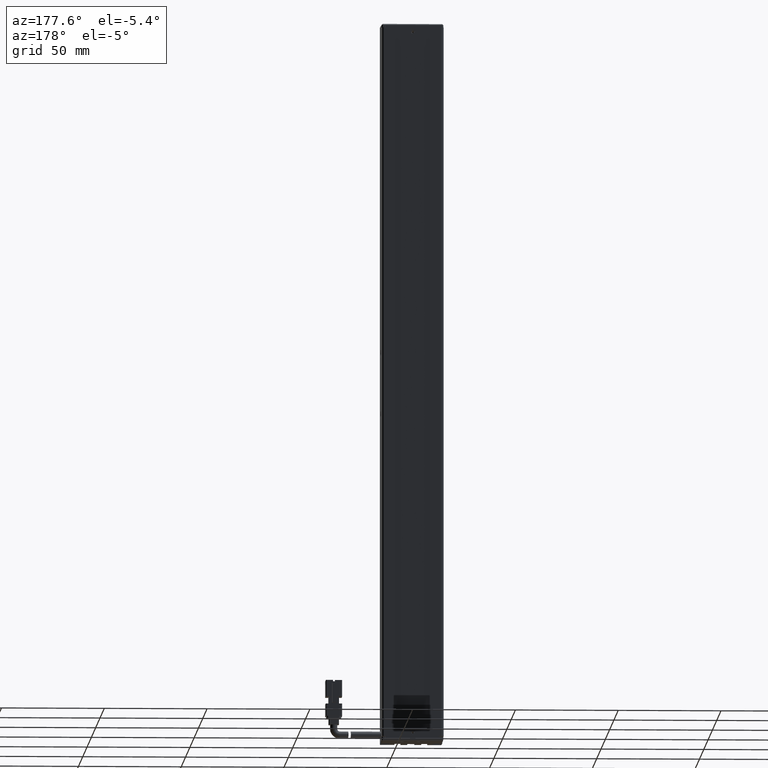
[diagram: clean part render]
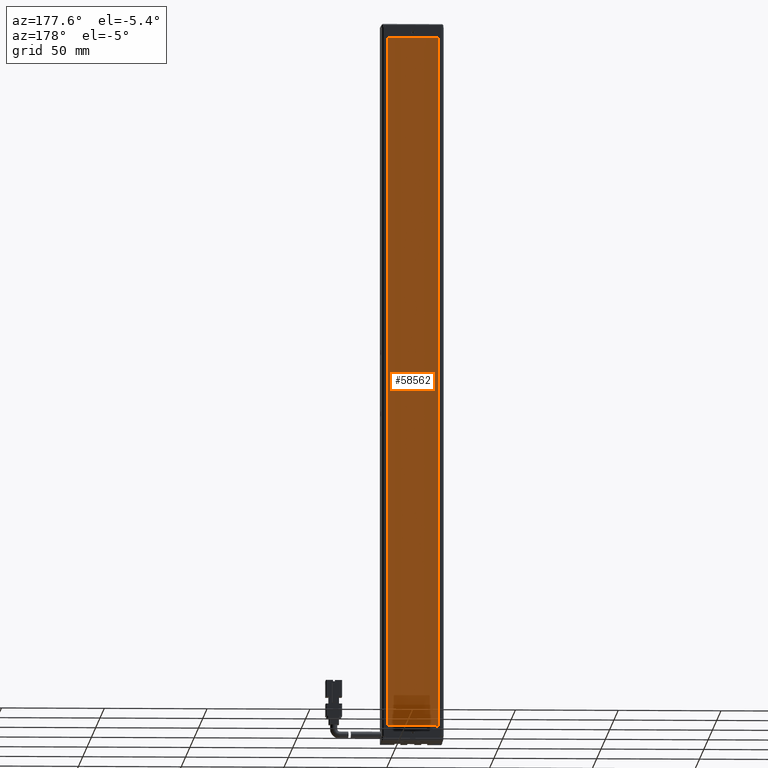
[diagram: same view with one face highlighted and labeled with its STEP entity id]
A machine part, auxiliary view. The second image highlights one B-rep face of the part: STEP entity #58562.
In plain terms, the highlighted planar face has unit normal (0, 1, 0).
Its self-contained STEP definition (entity closure, byte-faithful):
#2244 = CARTESIAN_POINT ( 'NONE',  ( 53.32537974683541600, 34.29594479660387000, -282.8499999999999100 ) ) ;
#3876 = EDGE_CURVE ( 'NONE', #60695, #12464, #58240, .T. ) ;
#5811 = ORIENTED_EDGE ( 'NONE', *, *, #28850, .T. ) ;
#9453 = LINE ( 'NONE', #23315, #35517 ) ;
#9495 = EDGE_CURVE ( 'NONE', #12464, #58180, #34887, .T. ) ;
#10047 = ORIENTED_EDGE ( 'NONE', *, *, #3876, .T. ) ;
#12464 = VERTEX_POINT ( 'NONE', #46822 ) ;
#14019 = ORIENTED_EDGE ( 'NONE', *, *, #20964, .T. ) ;
#15326 = CARTESIAN_POINT ( 'NONE',  ( 28.52537974683541600, 34.29594479660387000, -282.8499999999999100 ) ) ;
#16737 = VECTOR ( 'NONE', #43999, 1000.000000000000000 ) ;
#20964 = EDGE_CURVE ( 'NONE', #58180, #49548, #9453, .T. ) ;
#23315 = CARTESIAN_POINT ( 'NONE',  ( 28.52537974683541600, 34.29594479660387000, 53.15000000000005500 ) ) ;
#24710 = CARTESIAN_POINT ( 'NONE',  ( 28.52537974683541600, 34.29594479660387000, 53.15000000000005500 ) ) ;
#25529 = CARTESIAN_POINT ( 'NONE',  ( 53.32537974683541600, 34.29594479660387000, 53.15000000000005500 ) ) ;
#28295 = DIRECTION ( 'NONE',  ( 0.0000000000000000000, 1.000000000000000000, 0.0000000000000000000 ) ) ;
#28850 = EDGE_CURVE ( 'NONE', #49548, #60695, #49589, .T. ) ;
#34887 = LINE ( 'NONE', #15326, #48741 ) ;
#35495 = AXIS2_PLACEMENT_3D ( 'NONE', #59464, #28295, #64699 ) ;
#35517 = VECTOR ( 'NONE', #59492, 1000.000000000000000 ) ;
#40978 = CARTESIAN_POINT ( 'NONE',  ( 53.32537974683541600, 34.29594479660387000, -282.8499999999999100 ) ) ;
#42018 = DIRECTION ( 'NONE',  ( 0.0000000000000000000, 0.0000000000000000000, -1.000000000000000000 ) ) ;
#43089 = VECTOR ( 'NONE', #42018, 1000.000000000000000 ) ;
#43999 = DIRECTION ( 'NONE',  ( -1.000000000000000000, 0.0000000000000000000, 0.0000000000000000000 ) ) ;
#46486 = DIRECTION ( 'NONE',  ( 0.0000000000000000000, 0.0000000000000000000, 1.000000000000000000 ) ) ;
#46822 = CARTESIAN_POINT ( 'NONE',  ( 28.52537974683541600, 34.29594479660387000, -282.8499999999999100 ) ) ;
#47268 = FACE_OUTER_BOUND ( 'NONE', #61879, .T. ) ;
#48741 = VECTOR ( 'NONE', #46486, 1000.000000000000000 ) ;
#49548 = VERTEX_POINT ( 'NONE', #25529 ) ;
#49589 = LINE ( 'NONE', #62672, #43089 ) ;
#58180 = VERTEX_POINT ( 'NONE', #24710 ) ;
#58240 = LINE ( 'NONE', #2244, #16737 ) ;
#58562 = ADVANCED_FACE ( 'NONE', ( #47268 ), #64478, .T. ) ;
#59464 = CARTESIAN_POINT ( 'NONE',  ( 0.0000000000000000000, 34.29594479660387000, 0.0000000000000000000 ) ) ;
#59492 = DIRECTION ( 'NONE',  ( 1.000000000000000000, 0.0000000000000000000, 0.0000000000000000000 ) ) ;
#60695 = VERTEX_POINT ( 'NONE', #40978 ) ;
#61879 = EDGE_LOOP ( 'NONE', ( #5811, #10047, #66239, #14019 ) ) ;
#62672 = CARTESIAN_POINT ( 'NONE',  ( 53.32537974683541600, 34.29594479660387000, 53.15000000000005500 ) ) ;
#64478 = PLANE ( 'NONE',  #35495 ) ;
#64699 = DIRECTION ( 'NONE',  ( 0.0000000000000000000, -0.0000000000000000000, 1.000000000000000000 ) ) ;
#66239 = ORIENTED_EDGE ( 'NONE', *, *, #9495, .T. ) ;